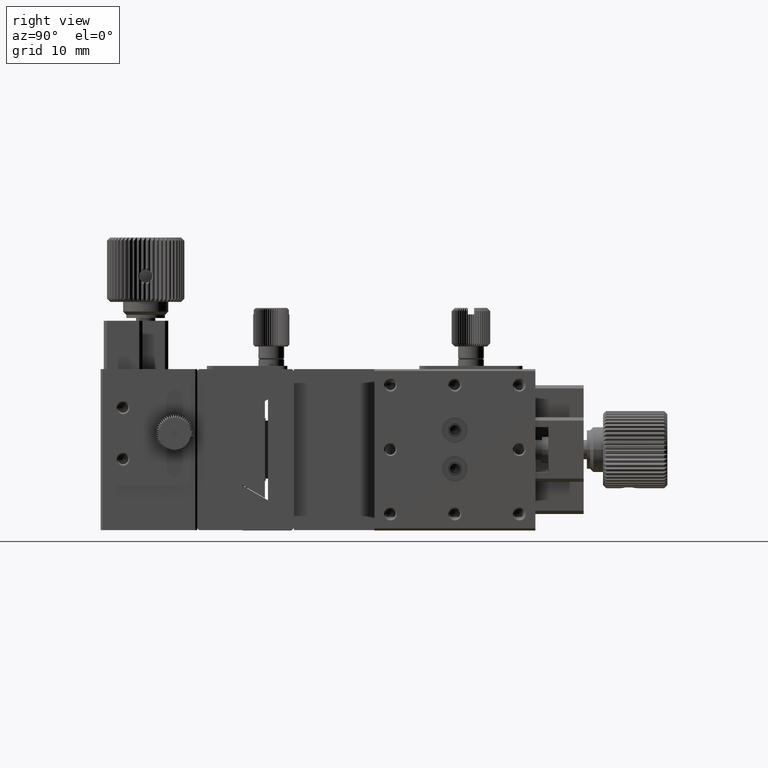
[diagram: clean part render]
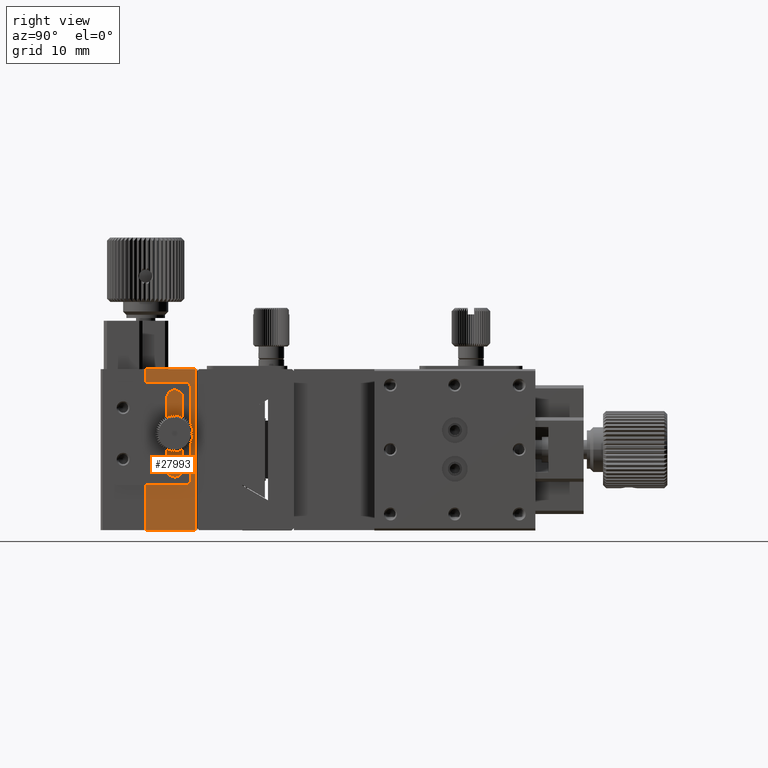
[diagram: same view with one face highlighted and labeled with its STEP entity id]
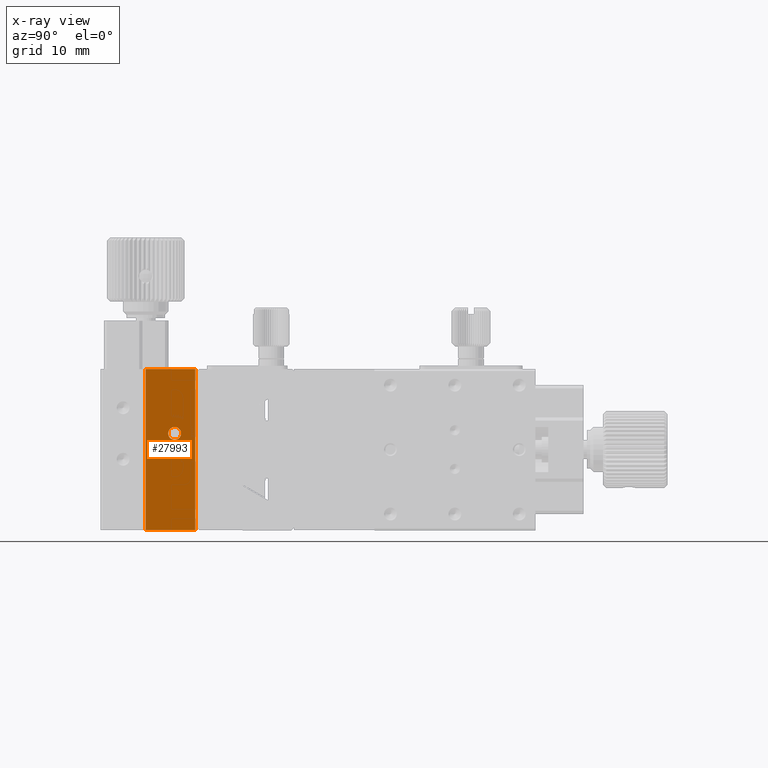
[diagram: x-ray of the same camera — body ghosted, the highlighted face saturated]
A machine part, right view. The second image highlights one B-rep face of the part: STEP entity #27993.
The next image is the same camera in x-ray: the body ghosted, the highlighted face saturated — about 0% of this face is hidden behind the body in this view.
In plain terms, the highlighted planar face has unit normal (-1, -0, -0).
Its self-contained STEP definition (entity closure, byte-faithful):
#829 = CARTESIAN_POINT ( 'NONE',  ( 5.000000000000000000, -15.29999999999995453, -25.00000000000000000 ) ) ;
#841 = LINE ( 'NONE', #29831, #17035 ) ;
#1352 = ORIENTED_EDGE ( 'NONE', *, *, #28086, .F. ) ;
#2704 = CARTESIAN_POINT ( 'NONE',  ( 5.000000000000000000, -15.00000000000000000, -25.00000000000000000 ) ) ;
#5458 = FACE_OUTER_BOUND ( 'NONE', #10560, .T. ) ;
#7597 = CARTESIAN_POINT ( 'NONE',  ( 5.000000000000000888, -23.00000000000000000, -25.00000000000000000 ) ) ;
#7625 = VERTEX_POINT ( 'NONE', #35441 ) ;
#9012 = AXIS2_PLACEMENT_3D ( 'NONE', #34990, #30600, #51689 ) ;
#10560 = EDGE_LOOP ( 'NONE', ( #50338, #1352, #45492, #48330 ) ) ;
#11168 = LINE ( 'NONE', #7597, #32165 ) ;
#11506 = EDGE_CURVE ( 'NONE', #48333, #19540, #841, .T. ) ;
#12189 = ORIENTED_EDGE ( 'NONE', *, *, #31119, .F. ) ;
#15638 = CARTESIAN_POINT ( 'NONE',  ( 5.000000000000000000, -23.00000000000000000, -25.00000000000000000 ) ) ;
#17035 = VECTOR ( 'NONE', #21078, 1000.000000000000000 ) ;
#17037 = DIRECTION ( 'NONE',  ( 1.000000000000000000, -0.000000000000000000, -0.000000000000000000 ) ) ;
#19540 = VERTEX_POINT ( 'NONE', #32186 ) ;
#21078 = DIRECTION ( 'NONE',  ( -0.000000000000000000, -1.000000000000000000, -0.000000000000000000 ) ) ;
#22412 = DIRECTION ( 'NONE',  ( -0.000000000000000000, -0.000000000000000000, 1.000000000000000000 ) ) ;
#23812 = CARTESIAN_POINT ( 'NONE',  ( 5.000000000000000000, -18.50000000000000000, -9.000000000000001776 ) ) ;
#25609 = VECTOR ( 'NONE', #39653, 1000.000000000000000 ) ;
#25687 = VECTOR ( 'NONE', #22412, 1000.000000000000000 ) ;
#26853 = CARTESIAN_POINT ( 'NONE',  ( 5.000000000000000000, -15.29999999999995453, 0.000000000000000000 ) ) ;
#27573 = CIRCLE ( 'NONE', #50322, 0.9999999999999991118 ) ;
#27993 = ADVANCED_FACE ( 'NONE', ( #5458, #46747 ), #46476, .F. ) ;
#28086 = EDGE_CURVE ( 'NONE', #7625, #44696, #51975, .T. ) ;
#28524 = CARTESIAN_POINT ( 'NONE',  ( 5.000000000000000000, -18.50000000000000000, -10.00000000000000000 ) ) ;
#29831 = CARTESIAN_POINT ( 'NONE',  ( 5.000000000000000000, -15.00000000000000000, 0.000000000000000000 ) ) ;
#30600 = DIRECTION ( 'NONE',  ( -1.000000000000000000, -6.361801554012190564E-17, -0.000000000000000000 ) ) ;
#31119 = EDGE_CURVE ( 'NONE', #44604, #44604, #27573, .T. ) ;
#32165 = VECTOR ( 'NONE', #53540, 1000.000000000000000 ) ;
#32186 = CARTESIAN_POINT ( 'NONE',  ( 5.000000000000000000, -23.00000000000000000, 0.000000000000000000 ) ) ;
#34788 = EDGE_LOOP ( 'NONE', ( #12189 ) ) ;
#34990 = CARTESIAN_POINT ( 'NONE',  ( 5.000000000000000000, -15.29999999999995453, -25.00000000000000000 ) ) ;
#35441 = CARTESIAN_POINT ( 'NONE',  ( 5.000000000000000000, -15.29999999999995453, -25.00000000000000000 ) ) ;
#38873 = LINE ( 'NONE', #829, #25687 ) ;
#39653 = DIRECTION ( 'NONE',  ( -0.000000000000000000, -1.000000000000000000, -0.000000000000000000 ) ) ;
#44604 = VERTEX_POINT ( 'NONE', #23812 ) ;
#44696 = VERTEX_POINT ( 'NONE', #15638 ) ;
#45485 = EDGE_CURVE ( 'NONE', #44696, #19540, #11168, .T. ) ;
#45492 = ORIENTED_EDGE ( 'NONE', *, *, #52623, .T. ) ;
#46476 = PLANE ( 'NONE',  #9012 ) ;
#46747 = FACE_BOUND ( 'NONE', #34788, .T. ) ;
#48330 = ORIENTED_EDGE ( 'NONE', *, *, #11506, .T. ) ;
#48333 = VERTEX_POINT ( 'NONE', #26853 ) ;
#50140 = DIRECTION ( 'NONE',  ( 0.000000000000000000, 0.000000000000000000, 1.000000000000000000 ) ) ;
#50322 = AXIS2_PLACEMENT_3D ( 'NONE', #28524, #17037, #50140 ) ;
#50338 = ORIENTED_EDGE ( 'NONE', *, *, #45485, .F. ) ;
#51689 = DIRECTION ( 'NONE',  ( -6.361801554012190564E-17, 1.000000000000000000, 0.000000000000000000 ) ) ;
#51975 = LINE ( 'NONE', #2704, #25609 ) ;
#52623 = EDGE_CURVE ( 'NONE', #7625, #48333, #38873, .T. ) ;
#53540 = DIRECTION ( 'NONE',  ( -0.000000000000000000, -0.000000000000000000, 1.000000000000000000 ) ) ;